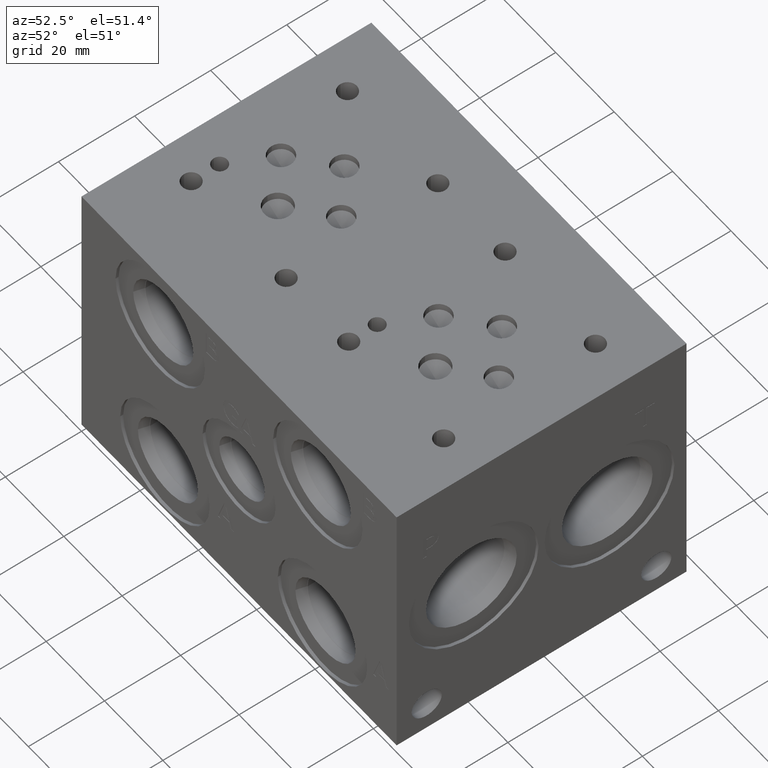
[diagram: clean part render]
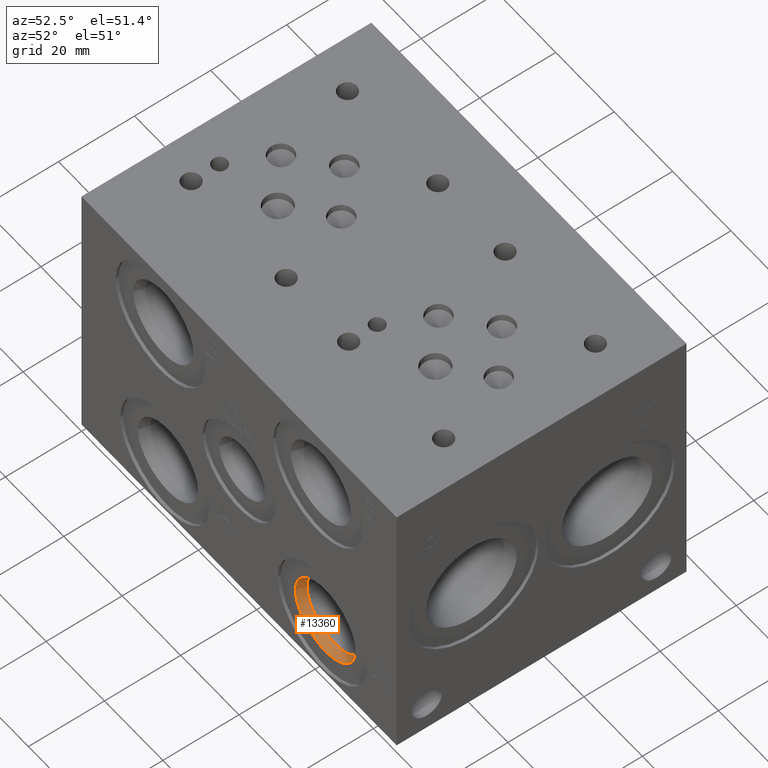
[diagram: same view with one face highlighted and labeled with its STEP entity id]
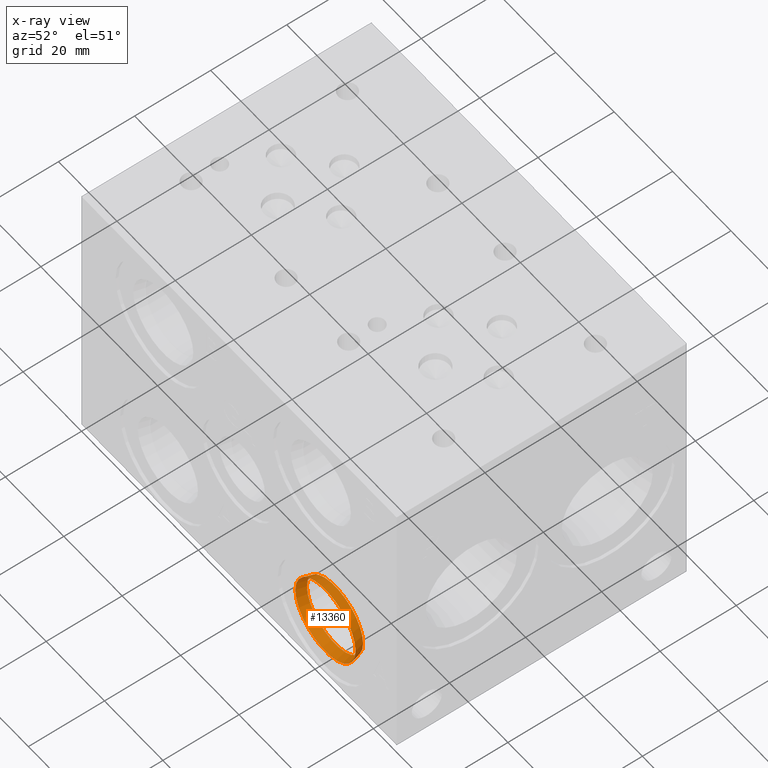
[diagram: x-ray of the same camera — body ghosted, the highlighted face saturated]
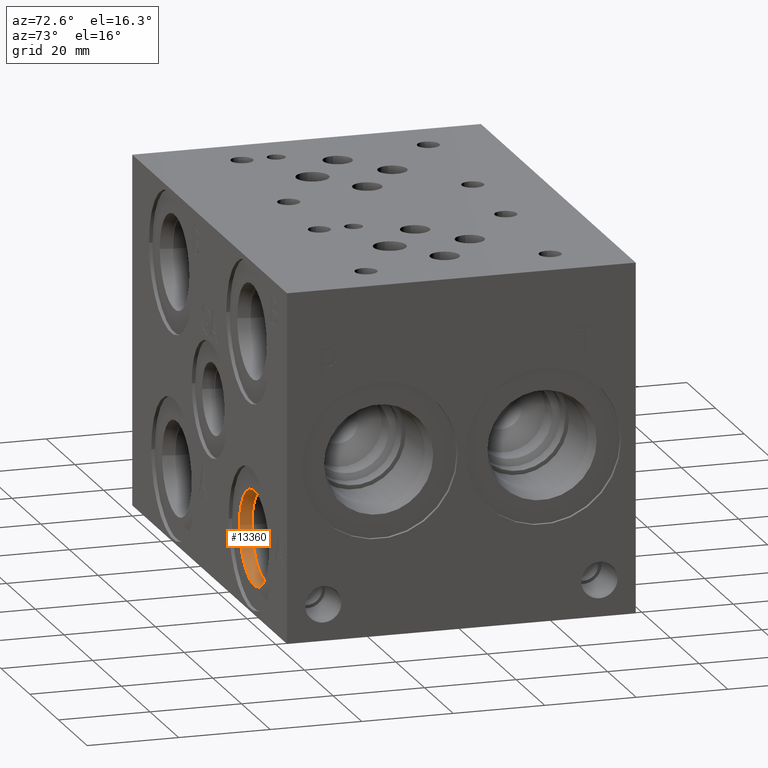
[diagram: same view with one face highlighted and labeled with its STEP entity id]
A machine part, auxiliary view. The second image highlights one B-rep face of the part: STEP entity #13360.
The next image is the same camera in x-ray: the body ghosted, the highlighted face saturated — about 0% of this face is hidden behind the body in this view.
A second angle (auxiliary view) of the same face is appended — the face is thin or edge-on in the first view.
In plain terms, the highlighted conical surface has half-angle 15.05 deg.
Its self-contained STEP definition (entity closure, byte-faithful):
#39=CONICAL_SURFACE('',#14052,9.96315000000001,0.262678410964684);
#331=CIRCLE('',#14050,10.2997);
#332=CIRCLE('',#14051,10.2997);
#333=CIRCLE('',#14053,9.6266);
#334=CIRCLE('',#14054,9.6266);
#1744=FACE_OUTER_BOUND('',#2515,.T.);
#2515=EDGE_LOOP('',(#11342,#11343,#11344,#11345,#11346,#11347));
#3753=LINE('',#22933,#4929);
#4929=VECTOR('',#16541,9.96315000000001);
#6135=VERTEX_POINT('',#22927);
#6136=VERTEX_POINT('',#22928);
#6137=VERTEX_POINT('',#22932);
#6138=VERTEX_POINT('',#22934);
#7931=EDGE_CURVE('',#6135,#6136,#331,.T.);
#7932=EDGE_CURVE('',#6136,#6135,#332,.T.);
#7933=EDGE_CURVE('',#6136,#6137,#3753,.T.);
#7934=EDGE_CURVE('',#6137,#6138,#333,.T.);
#7935=EDGE_CURVE('',#6138,#6137,#334,.T.);
#11342=ORIENTED_EDGE('',*,*,#7931,.F.);
#11343=ORIENTED_EDGE('',*,*,#7932,.F.);
#11344=ORIENTED_EDGE('',*,*,#7933,.T.);
#11345=ORIENTED_EDGE('',*,*,#7934,.T.);
#11346=ORIENTED_EDGE('',*,*,#7935,.T.);
#11347=ORIENTED_EDGE('',*,*,#7933,.F.);
#13360=ADVANCED_FACE('',(#1744),#39,.F.);
#14050=AXIS2_PLACEMENT_3D('',#22929,#16535,#16536);
#14051=AXIS2_PLACEMENT_3D('',#22930,#16537,#16538);
#14052=AXIS2_PLACEMENT_3D('',#22931,#16539,#16540);
#14053=AXIS2_PLACEMENT_3D('',#22935,#16542,#16543);
#14054=AXIS2_PLACEMENT_3D('',#22936,#16544,#16545);
#16535=DIRECTION('center_axis',(0.,1.,0.));
#16536=DIRECTION('ref_axis',(1.,0.,0.));
#16537=DIRECTION('center_axis',(0.,1.,0.));
#16538=DIRECTION('ref_axis',(1.,0.,0.));
#16539=DIRECTION('center_axis',(0.,-1.,0.));
#16540=DIRECTION('ref_axis',(1.,0.,0.));
#16541=DIRECTION('',(0.259668016178306,0.965697945205447,-3.18001604853706E-17));
#16542=DIRECTION('center_axis',(0.,1.,0.));
#16543=DIRECTION('ref_axis',(1.,0.,0.));
#16544=DIRECTION('center_axis',(0.,1.,0.));
#16545=DIRECTION('ref_axis',(1.,0.,0.));
#22927=CARTESIAN_POINT('',(92.8497,0.7874,15.875));
#22928=CARTESIAN_POINT('',(72.2503,0.7874,15.875));
#22929=CARTESIAN_POINT('Origin',(82.55,0.7874,15.875));
#22930=CARTESIAN_POINT('Origin',(82.55,0.7874,15.875));
#22931=CARTESIAN_POINT('Origin',(82.55,2.03901985,15.875));
#22932=CARTESIAN_POINT('',(72.9234,3.2906397,15.875));
#22933=CARTESIAN_POINT('',(72.58685,2.03901985,15.875));
#22934=CARTESIAN_POINT('',(92.1766,3.2906397,15.875));
#22935=CARTESIAN_POINT('Origin',(82.55,3.2906397,15.875));
#22936=CARTESIAN_POINT('Origin',(82.55,3.2906397,15.875));